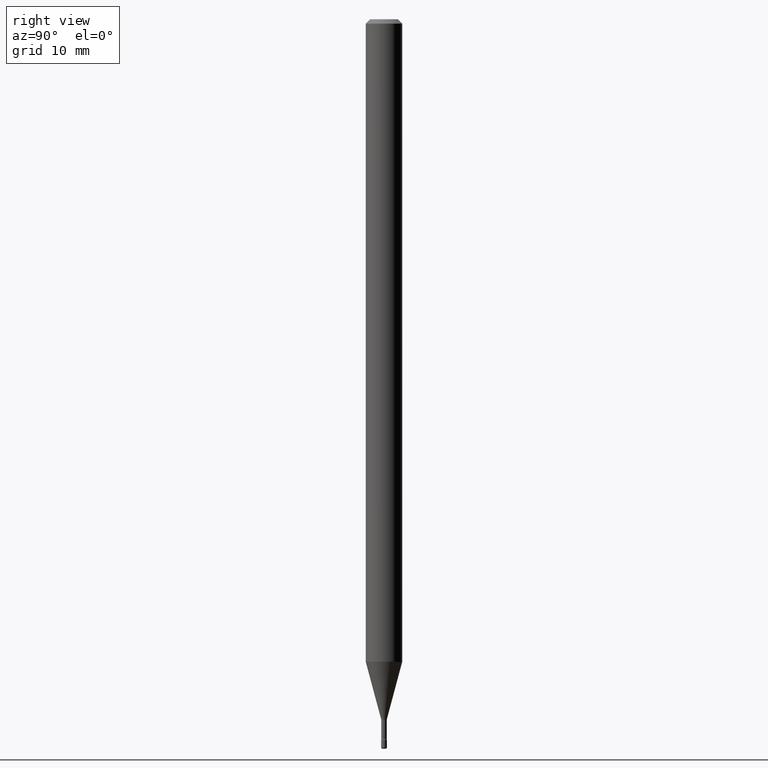
[diagram: clean part render]
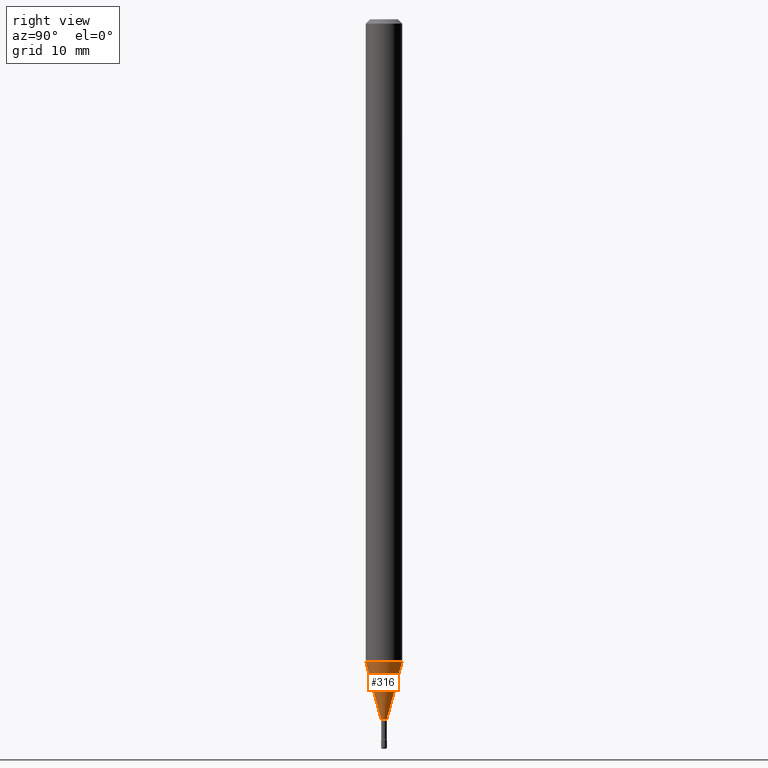
[diagram: same view with one face highlighted and labeled with its STEP entity id]
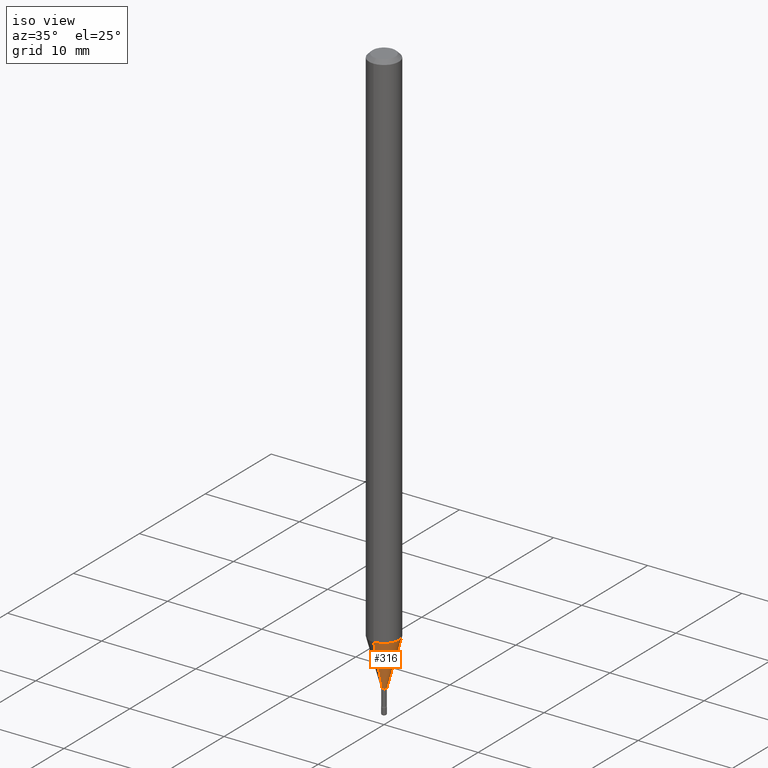
[diagram: same view with one face highlighted and labeled with its STEP entity id]
A machine part, right view. The second image highlights one B-rep face of the part: STEP entity #316.
A second angle (iso view) of the same face is appended — the face is thin or edge-on in the first view.
In plain terms, the highlighted conical surface has half-angle 15 deg.
Its self-contained STEP definition (entity closure, byte-faithful):
#31 = AXIS2_PLACEMENT_3D ( 'NONE', #446, #141, #395 ) ;
#52 = CARTESIAN_POINT ( 'NONE',  ( 2.572559502513620993E-16, 0.009911112605655608698, -2.398092501787273179 ) ) ;
#78 = DIRECTION ( 'NONE',  ( -6.982962677686264344E-15, -1.000000000000000000, 0.000000000000000000 ) ) ;
#91 = CARTESIAN_POINT ( 'NONE',  ( 5.864546432199082020E-29, -8.372772026497729936E-15, -2.398092501787273179 ) ) ;
#94 = VERTEX_POINT ( 'NONE', #52 ) ;
#98 = AXIS2_PLACEMENT_3D ( 'NONE', #91, #297, #203 ) ;
#120 = DIRECTION ( 'NONE',  ( -1.807323732225330928E-15, -0.2588190451025182970, 0.9659258262890689783 ) ) ;
#121 = CARTESIAN_POINT ( 'NONE',  ( -6.920892941963881843E-17, -0.009911112605672353984, -2.398092501787273179 ) ) ;
#135 = EDGE_CURVE ( 'NONE', #209, #333, #460, .T. ) ;
#141 = DIRECTION ( 'NONE',  ( -2.445504678334258331E-29, 3.491429967883887349E-15, 1.000000000000000000 ) ) ;
#158 = EDGE_CURVE ( 'NONE', #285, #209, #195, .T. ) ;
#163 = FACE_OUTER_BOUND ( 'NONE', #436, .T. ) ;
#195 = LINE ( 'NONE', #449, #307 ) ;
#203 = DIRECTION ( 'NONE',  ( -6.982962677686264344E-15, -1.000000000000000000, 0.000000000000000000 ) ) ;
#206 = DIRECTION ( 'NONE',  ( -2.445504678334258331E-29, 3.491429967883887349E-15, 1.000000000000000000 ) ) ;
#207 = VECTOR ( 'NONE', #560, 39.37007874015748143 ) ;
#209 = VERTEX_POINT ( 'NONE', #405 ) ;
#210 = LINE ( 'NONE', #519, #207 ) ;
#232 = CARTESIAN_POINT ( 'NONE',  ( 4.440892098501162587E-16, 0.06249999999999230477, -2.201828102118093877 ) ) ;
#243 = AXIS2_PLACEMENT_3D ( 'NONE', #331, #206, #78 ) ;
#251 = ORIENTED_EDGE ( 'NONE', *, *, #158, .F. ) ;
#285 = VERTEX_POINT ( 'NONE', #121 ) ;
#297 = DIRECTION ( 'NONE',  ( -2.445504678334258331E-29, 3.491429967883887349E-15, 1.000000000000000000 ) ) ;
#307 = VECTOR ( 'NONE', #120, 39.37007874015748143 ) ;
#316 = ADVANCED_FACE ( 'NONE', ( #163 ), #501, .T. ) ;
#331 = CARTESIAN_POINT ( 'NONE',  ( 5.864546432199082020E-29, -8.372772026497729936E-15, -2.398092501787273179 ) ) ;
#333 = VERTEX_POINT ( 'NONE', #232 ) ;
#367 = EDGE_CURVE ( 'NONE', #285, #94, #439, .T. ) ;
#395 = DIRECTION ( 'NONE',  ( -6.982962677686265922E-15, -1.000000000000000000, 4.370956789862821150E-15 ) ) ;
#405 = CARTESIAN_POINT ( 'NONE',  ( -4.364351673553378297E-16, -0.06250000000000768829, -2.201828102118092989 ) ) ;
#422 = EDGE_CURVE ( 'NONE', #94, #333, #210, .T. ) ;
#436 = EDGE_LOOP ( 'NONE', ( #559, #520, #554, #251 ) ) ;
#439 = CIRCLE ( 'NONE', #98, 0.009911112605663982209 ) ;
#446 = CARTESIAN_POINT ( 'NONE',  ( 5.384580924617639172E-29, -7.687528619864014535E-15, -2.201828102118093433 ) ) ;
#449 = CARTESIAN_POINT ( 'NONE',  ( -6.920892941963881843E-17, -0.009911112605672353984, -2.398092501787273179 ) ) ;
#460 = CIRCLE ( 'NONE', #31, 0.06250000000000000000 ) ;
#501 = CONICAL_SURFACE ( 'NONE', #243, 0.009911112605663982209, 0.2617993877991502960 ) ;
#519 = CARTESIAN_POINT ( 'NONE',  ( 7.042269065260763166E-17, 0.009911112605655608698, -2.398092501787273179 ) ) ;
#520 = ORIENTED_EDGE ( 'NONE', *, *, #422, .T. ) ;
#554 = ORIENTED_EDGE ( 'NONE', *, *, #135, .F. ) ;
#559 = ORIENTED_EDGE ( 'NONE', *, *, #367, .T. ) ;
#560 = DIRECTION ( 'NONE',  ( 1.839019923739601104E-15, 0.2588190451025250693, 0.9659258262890670910 ) ) ;